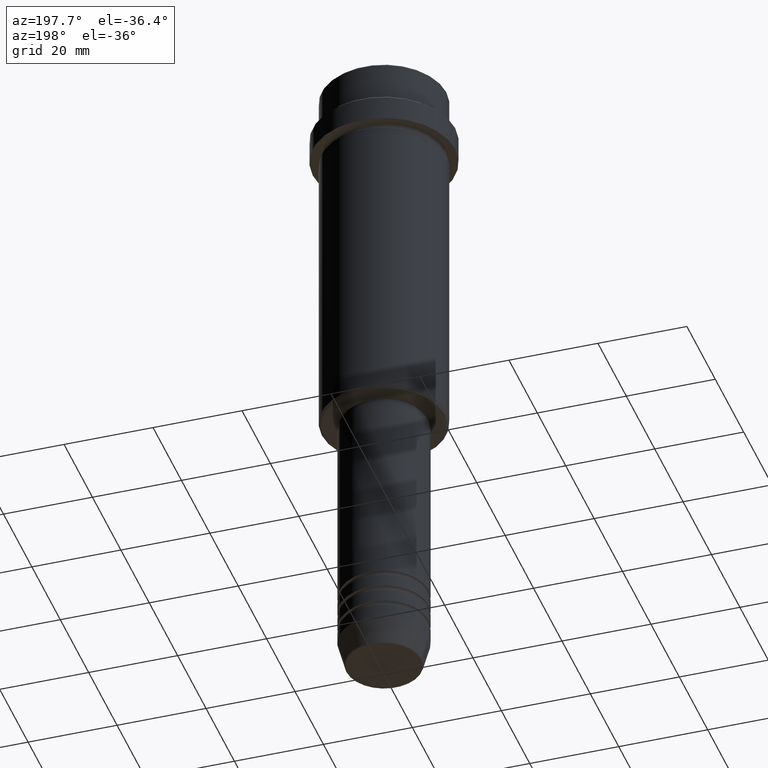
[diagram: clean part render]
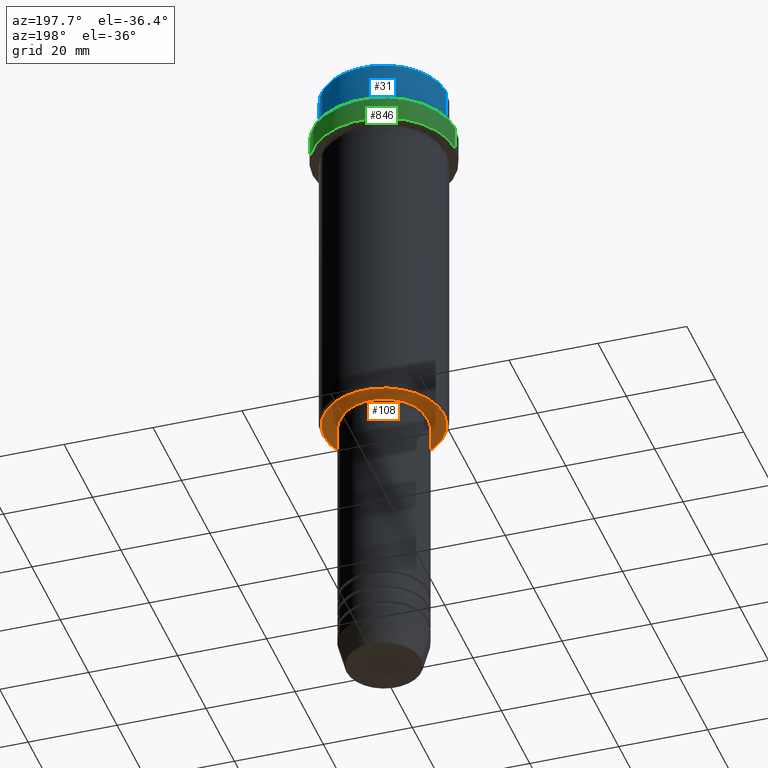
[diagram: same view with three faces highlighted in distinct colors, each labeled with its STEP entity id]
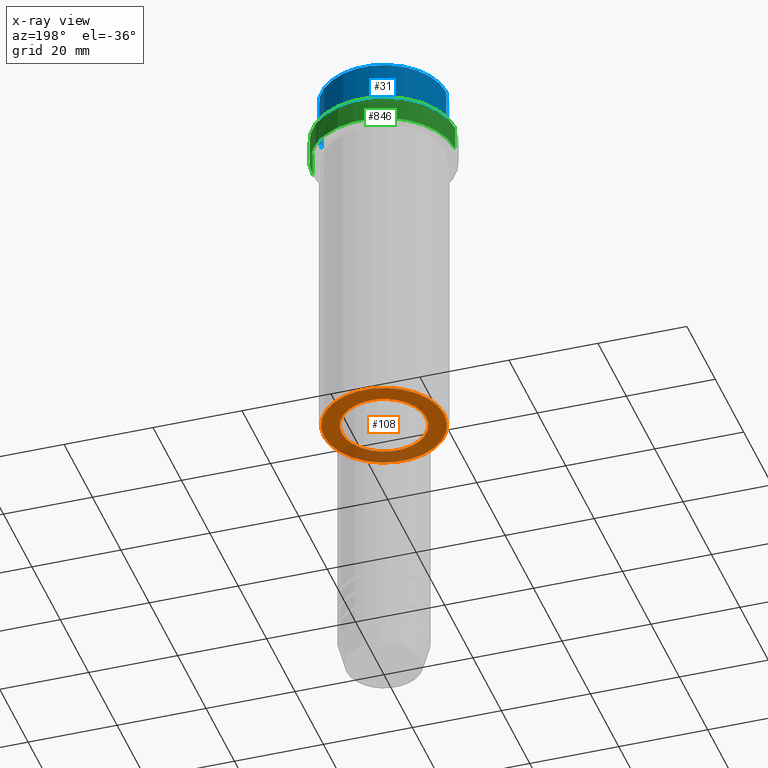
[diagram: x-ray of the same camera — body ghosted, the three highlighted faces saturated]
A machine part, auxiliary view with three faces highlighted in distinct colors.
The next image is the same camera in x-ray (body ghosted, the three faces saturated) — at least one of them is partly hidden behind the body in this view.
Their STEP definitions:

[orange] entity #108 — the highlighted planar face has unit normal (0, 0, -1).
#73 = CARTESIAN_POINT ( 'NONE',  ( 0.000000000000000000, 0.000000000000000000, -86.00000000000000000 ) ) ;
#80 = ORIENTED_EDGE ( 'NONE', *, *, #514, .T. ) ;
#96 = VERTEX_POINT ( 'NONE', #942 ) ;
#105 = VERTEX_POINT ( 'NONE', #1390 ) ;
#108 = ADVANCED_FACE ( 'NONE', ( #977, #1411 ), #739, .T. ) ;
#124 = DIRECTION ( 'NONE',  ( 0.000000000000000000, 0.000000000000000000, -1.000000000000000000 ) ) ;
#195 = CIRCLE ( 'NONE', #996, 13.49999999999999822 ) ;
#220 = DIRECTION ( 'NONE',  ( 0.000000000000000000, 0.000000000000000000, -1.000000000000000000 ) ) ;
#292 = CIRCLE ( 'NONE', #921, 13.49999999999999822 ) ;
#344 = AXIS2_PLACEMENT_3D ( 'NONE', #1399, #1295, #956 ) ;
#415 = AXIS2_PLACEMENT_3D ( 'NONE', #666, #1416, #864 ) ;
#443 = ORIENTED_EDGE ( 'NONE', *, *, #949, .T. ) ;
#514 = EDGE_CURVE ( 'NONE', #1131, #957, #195, .T. ) ;
#523 = CIRCLE ( 'NONE', #748, 9.499999999999996447 ) ;
#546 = CARTESIAN_POINT ( 'NONE',  ( 13.49999999999999822, 0.000000000000000000, -86.00000000000000000 ) ) ;
#579 = CIRCLE ( 'NONE', #415, 9.499999999999996447 ) ;
#590 = CARTESIAN_POINT ( 'NONE',  ( -13.49999999999999822, 1.683889348827610062E-15, -86.00000000000000000 ) ) ;
#666 = CARTESIAN_POINT ( 'NONE',  ( 0.000000000000000000, 0.000000000000000000, -86.00000000000000000 ) ) ;
#735 = EDGE_LOOP ( 'NONE', ( #1120, #443 ) ) ;
#739 = PLANE ( 'NONE',  #344 ) ;
#748 = AXIS2_PLACEMENT_3D ( 'NONE', #889, #1232, #1322 ) ;
#864 = DIRECTION ( 'NONE',  ( 1.000000000000000000, 0.000000000000000000, 0.000000000000000000 ) ) ;
#889 = CARTESIAN_POINT ( 'NONE',  ( 0.000000000000000000, 0.000000000000000000, -86.00000000000000000 ) ) ;
#921 = AXIS2_PLACEMENT_3D ( 'NONE', #1106, #124, #1310 ) ;
#942 = CARTESIAN_POINT ( 'NONE',  ( 9.499999999999996447, 0.000000000000000000, -86.00000000000000000 ) ) ;
#949 = EDGE_CURVE ( 'NONE', #105, #96, #579, .T. ) ;
#955 = EDGE_CURVE ( 'NONE', #957, #1131, #292, .T. ) ;
#956 = DIRECTION ( 'NONE',  ( -1.000000000000000000, 0.000000000000000000, -0.000000000000000000 ) ) ;
#957 = VERTEX_POINT ( 'NONE', #546 ) ;
#977 = FACE_OUTER_BOUND ( 'NONE', #1410, .T. ) ;
#996 = AXIS2_PLACEMENT_3D ( 'NONE', #73, #220, #1105 ) ;
#1105 = DIRECTION ( 'NONE',  ( -1.000000000000000000, 0.000000000000000000, 0.000000000000000000 ) ) ;
#1106 = CARTESIAN_POINT ( 'NONE',  ( 0.000000000000000000, 0.000000000000000000, -86.00000000000000000 ) ) ;
#1120 = ORIENTED_EDGE ( 'NONE', *, *, #1188, .T. ) ;
#1131 = VERTEX_POINT ( 'NONE', #590 ) ;
#1188 = EDGE_CURVE ( 'NONE', #96, #105, #523, .T. ) ;
#1232 = DIRECTION ( 'NONE',  ( -0.000000000000000000, -0.000000000000000000, 1.000000000000000000 ) ) ;
#1295 = DIRECTION ( 'NONE',  ( 0.000000000000000000, 0.000000000000000000, -1.000000000000000000 ) ) ;
#1310 = DIRECTION ( 'NONE',  ( -1.000000000000000000, 0.000000000000000000, 0.000000000000000000 ) ) ;
#1322 = DIRECTION ( 'NONE',  ( 1.000000000000000000, 0.000000000000000000, 0.000000000000000000 ) ) ;
#1378 = ORIENTED_EDGE ( 'NONE', *, *, #955, .T. ) ;
#1390 = CARTESIAN_POINT ( 'NONE',  ( -9.499999999999996447, 1.163414459189985091E-15, -86.00000000000000000 ) ) ;
#1399 = CARTESIAN_POINT ( 'NONE',  ( 0.000000000000000000, 14.00000000000000000, -86.00000000000000000 ) ) ;
#1410 = EDGE_LOOP ( 'NONE', ( #1378, #80 ) ) ;
#1411 = FACE_BOUND ( 'NONE', #735, .T. ) ;
#1416 = DIRECTION ( 'NONE',  ( -0.000000000000000000, -0.000000000000000000, 1.000000000000000000 ) ) ;

[blue] entity #31 — the highlighted cylindrical surface (partial cylindrical patch) has radius 14 mm, axis along (-0, -0, 1).
#14 = CARTESIAN_POINT ( 'NONE',  ( 13.99999999999999112, 0.000000000000000000, -0.5000000000000125455 ) ) ;
#31 = ADVANCED_FACE ( 'NONE', ( #260 ), #141, .T. ) ;
#61 = CARTESIAN_POINT ( 'NONE',  ( -13.99999999999999112, 1.714505518806293455E-15, -0.5000000000000125455 ) ) ;
#81 = EDGE_CURVE ( 'NONE', #642, #307, #164, .T. ) ;
#123 = EDGE_CURVE ( 'NONE', #1218, #307, #244, .T. ) ;
#140 = VERTEX_POINT ( 'NONE', #402 ) ;
#141 = CYLINDRICAL_SURFACE ( 'NONE', #1084, 13.99999999999999112 ) ;
#164 = LINE ( 'NONE', #1391, #302 ) ;
#203 = CARTESIAN_POINT ( 'NONE',  ( 0.000000000000000000, 0.000000000000000000, -0.5000000000000125455 ) ) ;
#213 = AXIS2_PLACEMENT_3D ( 'NONE', #203, #321, #648 ) ;
#244 = CIRCLE ( 'NONE', #213, 13.99999999999999112 ) ;
#260 = FACE_OUTER_BOUND ( 'NONE', #1234, .T. ) ;
#298 = LINE ( 'NONE', #1035, #1112 ) ;
#302 = VECTOR ( 'NONE', #1336, 1000.000000000000000 ) ;
#307 = VERTEX_POINT ( 'NONE', #14 ) ;
#321 = DIRECTION ( 'NONE',  ( 0.000000000000000000, 0.000000000000000000, -1.000000000000000000 ) ) ;
#370 = EDGE_CURVE ( 'NONE', #642, #140, #1156, .T. ) ;
#372 = ORIENTED_EDGE ( 'NONE', *, *, #619, .T. ) ;
#394 = DIRECTION ( 'NONE',  ( 1.000000000000000000, 0.000000000000000000, 0.000000000000000000 ) ) ;
#402 = CARTESIAN_POINT ( 'NONE',  ( -13.99999999999998401, 1.714505518806293060E-15, -8.999999999999998224 ) ) ;
#431 = DIRECTION ( 'NONE',  ( 1.000000000000000000, 0.000000000000000000, 0.000000000000000000 ) ) ;
#483 = ORIENTED_EDGE ( 'NONE', *, *, #123, .T. ) ;
#524 = AXIS2_PLACEMENT_3D ( 'NONE', #790, #1048, #394 ) ;
#619 = EDGE_CURVE ( 'NONE', #140, #1218, #298, .T. ) ;
#642 = VERTEX_POINT ( 'NONE', #766 ) ;
#648 = DIRECTION ( 'NONE',  ( 1.000000000000000000, 0.000000000000000000, 0.000000000000000000 ) ) ;
#766 = CARTESIAN_POINT ( 'NONE',  ( 13.99999999999998401, 0.000000000000000000, -8.999999999999998224 ) ) ;
#790 = CARTESIAN_POINT ( 'NONE',  ( 0.000000000000000000, 0.000000000000000000, -8.999999999999998224 ) ) ;
#937 = DIRECTION ( 'NONE',  ( -0.000000000000000000, -0.000000000000000000, 1.000000000000000000 ) ) ;
#1017 = CARTESIAN_POINT ( 'NONE',  ( 0.000000000000000000, 0.000000000000000000, 0.000000000000000000 ) ) ;
#1035 = CARTESIAN_POINT ( 'NONE',  ( -13.99999999999999112, 1.714505518806293455E-15, 0.000000000000000000 ) ) ;
#1048 = DIRECTION ( 'NONE',  ( -0.000000000000000000, -0.000000000000000000, 1.000000000000000000 ) ) ;
#1084 = AXIS2_PLACEMENT_3D ( 'NONE', #1017, #937, #431 ) ;
#1112 = VECTOR ( 'NONE', #1266, 1000.000000000000000 ) ;
#1156 = CIRCLE ( 'NONE', #524, 13.99999999999998401 ) ;
#1201 = ORIENTED_EDGE ( 'NONE', *, *, #370, .T. ) ;
#1218 = VERTEX_POINT ( 'NONE', #61 ) ;
#1234 = EDGE_LOOP ( 'NONE', ( #1201, #372, #483, #1333 ) ) ;
#1266 = DIRECTION ( 'NONE',  ( -0.000000000000000000, -0.000000000000000000, 1.000000000000000000 ) ) ;
#1333 = ORIENTED_EDGE ( 'NONE', *, *, #81, .F. ) ;
#1336 = DIRECTION ( 'NONE',  ( -0.000000000000000000, -0.000000000000000000, 1.000000000000000000 ) ) ;
#1391 = CARTESIAN_POINT ( 'NONE',  ( 13.99999999999999112, 0.000000000000000000, 0.000000000000000000 ) ) ;

[green] entity #846 — the highlighted cylindrical surface (partial cylindrical patch) has radius 16 mm, axis along (-0, -0, 1).
#3 = VECTOR ( 'NONE', #520, 1000.000000000000000 ) ;
#89 = LINE ( 'NONE', #329, #3 ) ;
#98 = ORIENTED_EDGE ( 'NONE', *, *, #418, .T. ) ;
#99 = DIRECTION ( 'NONE',  ( -0.000000000000000000, -0.000000000000000000, 1.000000000000000000 ) ) ;
#115 = CARTESIAN_POINT ( 'NONE',  ( -15.99999999999998579, 1.959434878635763554E-15, 0.000000000000000000 ) ) ;
#143 = DIRECTION ( 'NONE',  ( 1.000000000000000000, 0.000000000000000000, 0.000000000000000000 ) ) ;
#156 = ORIENTED_EDGE ( 'NONE', *, *, #885, .T. ) ;
#163 = DIRECTION ( 'NONE',  ( 0.000000000000000000, 0.000000000000000000, -1.000000000000000000 ) ) ;
#218 = AXIS2_PLACEMENT_3D ( 'NONE', #363, #440, #658 ) ;
#226 = EDGE_CURVE ( 'NONE', #430, #516, #89, .T. ) ;
#282 = EDGE_LOOP ( 'NONE', ( #156, #98, #746, #813 ) ) ;
#329 = CARTESIAN_POINT ( 'NONE',  ( 15.99999999999998579, 0.000000000000000000, 0.000000000000000000 ) ) ;
#347 = VECTOR ( 'NONE', #99, 1000.000000000000000 ) ;
#363 = CARTESIAN_POINT ( 'NONE',  ( 0.000000000000000000, 0.000000000000000000, -16.00000000000000000 ) ) ;
#388 = EDGE_CURVE ( 'NONE', #914, #516, #600, .T. ) ;
#418 = EDGE_CURVE ( 'NONE', #1121, #914, #828, .T. ) ;
#430 = VERTEX_POINT ( 'NONE', #856 ) ;
#440 = DIRECTION ( 'NONE',  ( -0.000000000000000000, -0.000000000000000000, 1.000000000000000000 ) ) ;
#476 = CYLINDRICAL_SURFACE ( 'NONE', #622, 15.99999999999998579 ) ;
#516 = VERTEX_POINT ( 'NONE', #1409 ) ;
#520 = DIRECTION ( 'NONE',  ( -0.000000000000000000, -0.000000000000000000, 1.000000000000000000 ) ) ;
#580 = CARTESIAN_POINT ( 'NONE',  ( 0.000000000000000000, 0.000000000000000000, -10.49999999999997158 ) ) ;
#600 = CIRCLE ( 'NONE', #1062, 15.99999999999998579 ) ;
#622 = AXIS2_PLACEMENT_3D ( 'NONE', #1119, #1009, #143 ) ;
#658 = DIRECTION ( 'NONE',  ( 1.000000000000000000, 0.000000000000000000, 0.000000000000000000 ) ) ;
#671 = CARTESIAN_POINT ( 'NONE',  ( -15.99999999999998579, 1.959434878635763554E-15, -10.49999999999997158 ) ) ;
#705 = DIRECTION ( 'NONE',  ( 1.000000000000000000, 0.000000000000000000, 0.000000000000000000 ) ) ;
#746 = ORIENTED_EDGE ( 'NONE', *, *, #388, .T. ) ;
#813 = ORIENTED_EDGE ( 'NONE', *, *, #226, .F. ) ;
#828 = LINE ( 'NONE', #115, #347 ) ;
#846 = ADVANCED_FACE ( 'NONE', ( #1207 ), #476, .T. ) ;
#856 = CARTESIAN_POINT ( 'NONE',  ( 15.99999999999998579, 0.000000000000000000, -16.00000000000000000 ) ) ;
#885 = EDGE_CURVE ( 'NONE', #430, #1121, #1000, .T. ) ;
#914 = VERTEX_POINT ( 'NONE', #671 ) ;
#1000 = CIRCLE ( 'NONE', #218, 15.99999999999998579 ) ;
#1009 = DIRECTION ( 'NONE',  ( -0.000000000000000000, -0.000000000000000000, 1.000000000000000000 ) ) ;
#1062 = AXIS2_PLACEMENT_3D ( 'NONE', #580, #163, #705 ) ;
#1119 = CARTESIAN_POINT ( 'NONE',  ( 0.000000000000000000, 0.000000000000000000, 0.000000000000000000 ) ) ;
#1121 = VERTEX_POINT ( 'NONE', #1255 ) ;
#1207 = FACE_OUTER_BOUND ( 'NONE', #282, .T. ) ;
#1255 = CARTESIAN_POINT ( 'NONE',  ( -15.99999999999998579, 1.959434878635763554E-15, -16.00000000000000000 ) ) ;
#1409 = CARTESIAN_POINT ( 'NONE',  ( 15.99999999999998579, 0.000000000000000000, -10.49999999999997158 ) ) ;